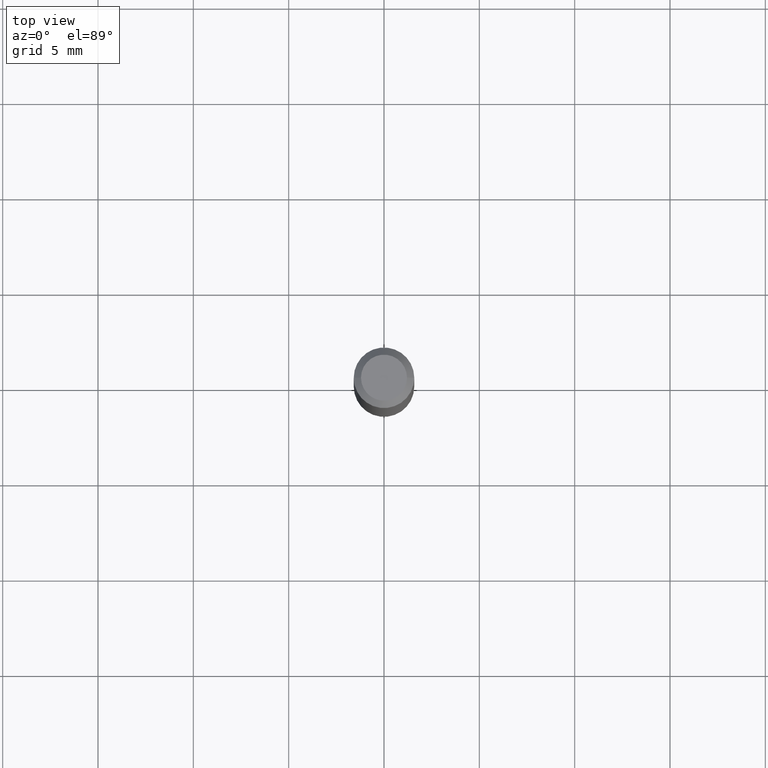
[diagram: clean part render]
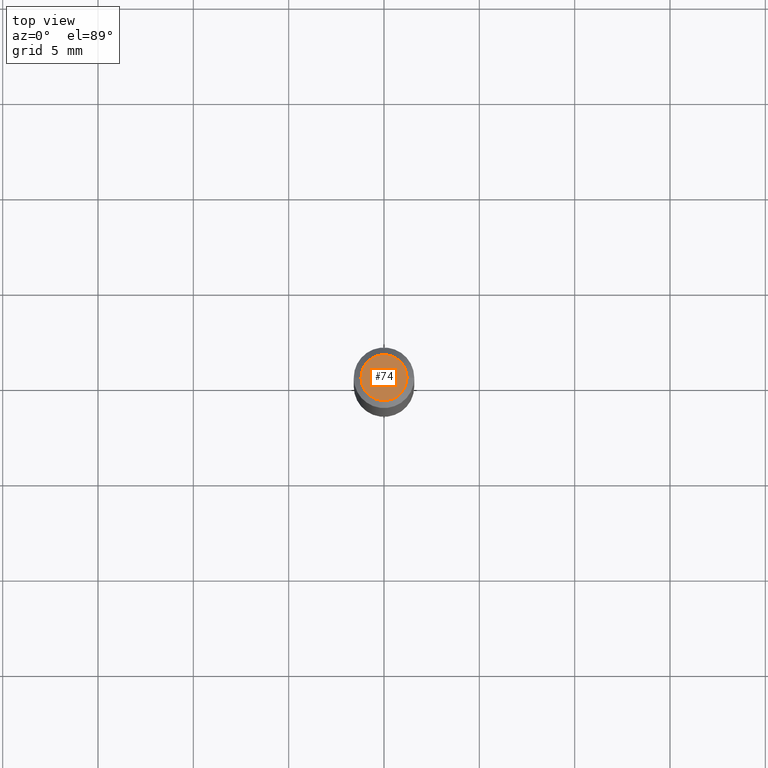
[diagram: same view with one face highlighted and labeled with its STEP entity id]
A machine part, top view. The second image highlights one B-rep face of the part: STEP entity #74.
In plain terms, the highlighted planar face has unit normal (0, -0, -1).
Its self-contained STEP definition (entity closure, byte-faithful):
#23 = CIRCLE ( 'NONE', #401, 0.04749999999999999362 ) ;
#28 = CIRCLE ( 'NONE', #197, 0.04749999999999999362 ) ;
#29 = DIRECTION ( 'NONE',  ( -1.000000000000000000, 6.982962677686265922E-15, -4.876176775795935793E-29 ) ) ;
#34 = DIRECTION ( 'NONE',  ( -2.445468806185136597E-29, 3.491481338843145583E-15, 1.000000000000000000 ) ) ;
#74 = ADVANCED_FACE ( 'NONE', ( #355 ), #280, .F. ) ;
#143 = ORIENTED_EDGE ( 'NONE', *, *, #462, .T. ) ;
#163 = VERTEX_POINT ( 'NONE', #451 ) ;
#170 = CARTESIAN_POINT ( 'NONE',  ( 0.04749999999999999362, -4.035134999187590949E-16, -7.360803069154797719E-16 ) ) ;
#181 = DIRECTION ( 'NONE',  ( 1.000000000000000000, -6.982962677686267499E-15, 4.852736867747366768E-29 ) ) ;
#197 = AXIS2_PLACEMENT_3D ( 'NONE', #388, #34, #181 ) ;
#218 = DIRECTION ( 'NONE',  ( 1.000000000000000000, -6.982962677686267499E-15, 4.852736867747366768E-29 ) ) ;
#247 = CARTESIAN_POINT ( 'NONE',  ( 3.316907271900976096E-16, 0.04749999999999999362, -5.338855170527906136E-16 ) ) ;
#262 = EDGE_LOOP ( 'NONE', ( #366, #143 ) ) ;
#268 = VERTEX_POINT ( 'NONE', #170 ) ;
#280 = PLANE ( 'NONE',  #281 ) ;
#281 = AXIS2_PLACEMENT_3D ( 'NONE', #247, #447, #29 ) ;
#336 = CARTESIAN_POINT ( 'NONE',  ( 1.800061429408993440E-44, -2.570010655485341702E-30, -7.360803069154823357E-16 ) ) ;
#355 = FACE_OUTER_BOUND ( 'NONE', #262, .T. ) ;
#366 = ORIENTED_EDGE ( 'NONE', *, *, #392, .T. ) ;
#388 = CARTESIAN_POINT ( 'NONE',  ( 1.800061429408993440E-44, -2.570010655485341702E-30, -7.360803069154823357E-16 ) ) ;
#392 = EDGE_CURVE ( 'NONE', #163, #268, #23, .T. ) ;
#401 = AXIS2_PLACEMENT_3D ( 'NONE', #336, #464, #218 ) ;
#447 = DIRECTION ( 'NONE',  ( 2.438088387897960049E-29, -3.491481338843145188E-15, -1.000000000000000000 ) ) ;
#451 = CARTESIAN_POINT ( 'NONE',  ( -0.04749999999999999362, 3.578768372314198180E-16, -7.360803069154847023E-16 ) ) ;
#462 = EDGE_CURVE ( 'NONE', #268, #163, #28, .T. ) ;
#464 = DIRECTION ( 'NONE',  ( -2.445468806185136597E-29, 3.491481338843145583E-15, 1.000000000000000000 ) ) ;